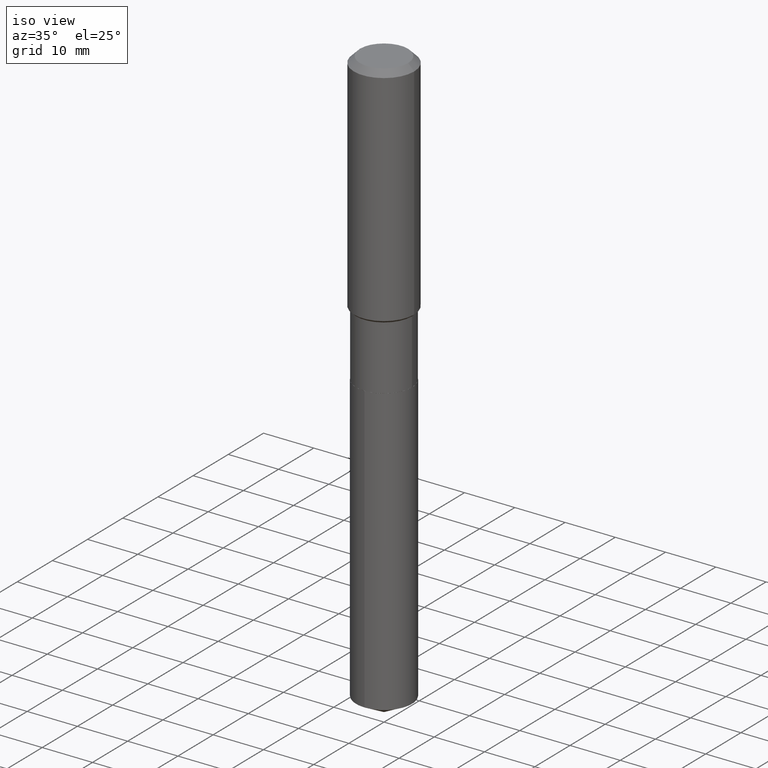
[diagram: clean part render]
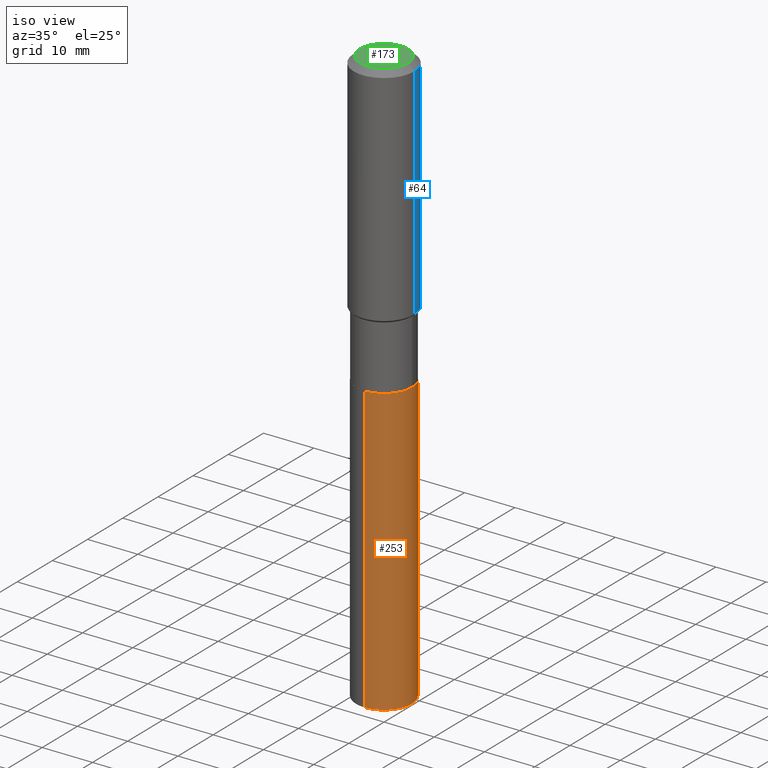
[diagram: same view with three faces highlighted in distinct colors, each labeled with its STEP entity id]
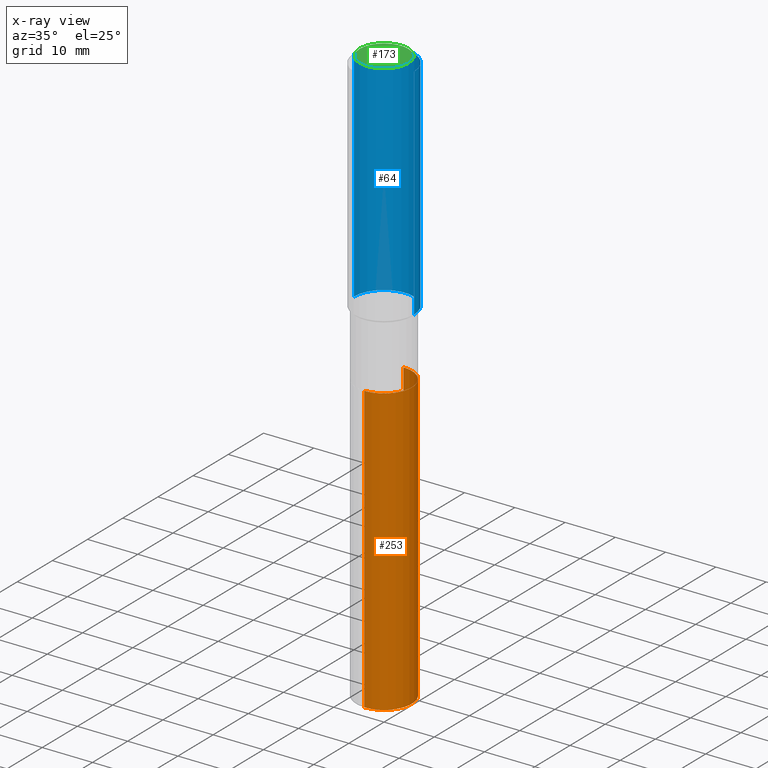
[diagram: x-ray of the same camera — body ghosted, the three highlighted faces saturated]
A machine part, iso view with three faces highlighted in distinct colors.
The next image is the same camera in x-ray (body ghosted, the three faces saturated) — at least one of them is partly hidden behind the body in this view.
Their STEP definitions:

[orange] entity #253 — the highlighted cylindrical surface (edge-blend (fillet) strip) has radius 5.5562 mm, axis along (-0, 0, 1).
#21 = EDGE_LOOP ( 'NONE', ( #48, #471, #53, #42 ) ) ;
#24 = CARTESIAN_POINT ( 'NONE',  ( 1.107731902311058001E-28, -1.581516993529237570E-14, -4.529688561824052329 ) ) ;
#26 = DIRECTION ( 'NONE',  ( -2.445516523471432488E-29, 3.491413004973270552E-15, 1.000000000000000000 ) ) ;
#42 = ORIENTED_EDGE ( 'NONE', *, *, #456, .F. ) ;
#48 = ORIENTED_EDGE ( 'NONE', *, *, #77, .T. ) ;
#53 = ORIENTED_EDGE ( 'NONE', *, *, #355, .F. ) ;
#59 = VERTEX_POINT ( 'NONE', #371 ) ;
#75 = AXIS2_PLACEMENT_3D ( 'NONE', #430, #360, #168 ) ;
#77 = EDGE_CURVE ( 'NONE', #362, #91, #472, .T. ) ;
#91 = VERTEX_POINT ( 'NONE', #440 ) ;
#116 = CARTESIAN_POINT ( 'NONE',  ( 5.596455362954686241E-29, -7.990255043942539745E-15, -2.288499999999999979 ) ) ;
#120 = DIRECTION ( 'NONE',  ( -2.445516523471432488E-29, 3.491413004973270552E-15, 1.000000000000000000 ) ) ;
#154 = CARTESIAN_POINT ( 'NONE',  ( -1.527523085743814439E-15, -0.2187500000000079659, -2.288499999999999535 ) ) ;
#168 = DIRECTION ( 'NONE',  ( -6.982962677686265133E-15, -1.000000000000000000, 3.746534391310989557E-15 ) ) ;
#179 = DIRECTION ( 'NONE',  ( -6.982962677686265133E-15, -1.000000000000000000, 2.497689594207326371E-15 ) ) ;
#186 = CIRCLE ( 'NONE', #75, 0.2187500000000000000 ) ;
#188 = DIRECTION ( 'NONE',  ( -2.445516523471432488E-29, 3.491413004973270552E-15, 1.000000000000000000 ) ) ;
#193 = LINE ( 'NONE', #341, #406 ) ;
#253 = ADVANCED_FACE ( 'NONE', ( #259 ), #446, .T. ) ;
#256 = DIRECTION ( 'NONE',  ( -2.445516523471432488E-29, 3.491413004973270552E-15, 1.000000000000000000 ) ) ;
#258 = EDGE_CURVE ( 'NONE', #91, #59, #193, .T. ) ;
#259 = FACE_OUTER_BOUND ( 'NONE', #21, .T. ) ;
#341 = CARTESIAN_POINT ( 'NONE',  ( 1.554312234475274969E-15, 0.2187499999999920064, -2.288500000000000867 ) ) ;
#347 = VECTOR ( 'NONE', #188, 39.37007874015748143 ) ;
#355 = EDGE_CURVE ( 'NONE', #389, #59, #186, .T. ) ;
#356 = CARTESIAN_POINT ( 'NONE',  ( -1.527523085743759811E-15, -0.2187500000000157929, -4.529688561824051440 ) ) ;
#360 = DIRECTION ( 'NONE',  ( -2.445516523471432488E-29, 3.491413004973270552E-15, 1.000000000000000000 ) ) ;
#362 = VERTEX_POINT ( 'NONE', #356 ) ;
#371 = CARTESIAN_POINT ( 'NONE',  ( 1.554312234475330189E-15, 0.2187499999999920064, -2.288500000000000867 ) ) ;
#389 = VERTEX_POINT ( 'NONE', #469 ) ;
#406 = VECTOR ( 'NONE', #120, 39.37007874015748143 ) ;
#409 = DIRECTION ( 'NONE',  ( -6.982962677686265133E-15, -1.000000000000000000, 3.746534391310989557E-15 ) ) ;
#430 = CARTESIAN_POINT ( 'NONE',  ( 5.596455362954686241E-29, -7.990255043942539745E-15, -2.288499999999999979 ) ) ;
#440 = CARTESIAN_POINT ( 'NONE',  ( 1.554312234475329992E-15, 0.2187499999999842071, -4.529688561824053217 ) ) ;
#446 = CYLINDRICAL_SURFACE ( 'NONE', #480, 0.2187500000000000000 ) ;
#447 = AXIS2_PLACEMENT_3D ( 'NONE', #24, #26, #179 ) ;
#456 = EDGE_CURVE ( 'NONE', #362, #389, #481, .T. ) ;
#469 = CARTESIAN_POINT ( 'NONE',  ( -1.527523085743814439E-15, -0.2187500000000079659, -2.288499999999999535 ) ) ;
#471 = ORIENTED_EDGE ( 'NONE', *, *, #258, .T. ) ;
#472 = CIRCLE ( 'NONE', #447, 0.2187500000000000000 ) ;
#480 = AXIS2_PLACEMENT_3D ( 'NONE', #116, #256, #409 ) ;
#481 = LINE ( 'NONE', #154, #347 ) ;

[blue] entity #64 — the highlighted cylindrical surface (partial cylindrical patch) has radius 5.9995 mm, axis along (-0, 0, 1).
#15 = VECTOR ( 'NONE', #461, 39.37007874015748143 ) ;
#23 = CIRCLE ( 'NONE', #282, 0.2362000000000002153 ) ;
#28 = EDGE_CURVE ( 'NONE', #239, #141, #420, .T. ) ;
#30 = DIRECTION ( 'NONE',  ( 1.000000000000000000, -6.982962677686266711E-15, 4.876176775795935793E-29 ) ) ;
#64 = ADVANCED_FACE ( 'NONE', ( #326 ), #286, .T. ) ;
#103 = VECTOR ( 'NONE', #380, 39.37007874015748143 ) ;
#107 = DIRECTION ( 'NONE',  ( -2.445468806185136597E-29, 3.491481338843145583E-15, 1.000000000000000000 ) ) ;
#126 = AXIS2_PLACEMENT_3D ( 'NONE', #394, #107, #30 ) ;
#133 = DIRECTION ( 'NONE',  ( -2.445468806185136597E-29, 3.491481338843145583E-15, 1.000000000000000000 ) ) ;
#141 = VERTEX_POINT ( 'NONE', #230 ) ;
#151 = DIRECTION ( 'NONE',  ( -2.445468806185136597E-29, 3.491481338843145583E-15, 1.000000000000000000 ) ) ;
#159 = EDGE_CURVE ( 'NONE', #224, #141, #373, .T. ) ;
#162 = CARTESIAN_POINT ( 'NONE',  ( -0.2362000000000001043, 1.678301941865357380E-15, -1.161852468318209317E-29 ) ) ;
#167 = ORIENTED_EDGE ( 'NONE', *, *, #28, .F. ) ;
#182 = DIRECTION ( 'NONE',  ( 1.000000000000000000, -6.982962677686266711E-15, 0.000000000000000000 ) ) ;
#187 = CARTESIAN_POINT ( 'NONE',  ( 1.155239464041865331E-30, -1.649375784469511612E-16, -0.04724000000000027483 ) ) ;
#200 = CARTESIAN_POINT ( 'NONE',  ( 0.2362000000000001043, -1.649375784469496920E-15, 1.151752954443000508E-29 ) ) ;
#224 = VERTEX_POINT ( 'NONE', #452 ) ;
#230 = CARTESIAN_POINT ( 'NONE',  ( -0.2361999999999999933, -1.490549063861987191E-15, -0.04724000000000027483 ) ) ;
#239 = VERTEX_POINT ( 'NONE', #484 ) ;
#271 = DIRECTION ( 'NONE',  ( 1.000000000000000000, -6.982962677686266711E-15, 0.000000000000000000 ) ) ;
#282 = AXIS2_PLACEMENT_3D ( 'NONE', #459, #133, #271 ) ;
#286 = CYLINDRICAL_SURFACE ( 'NONE', #126, 0.2362000000000001043 ) ;
#289 = EDGE_CURVE ( 'NONE', #387, #239, #453, .T. ) ;
#316 = CARTESIAN_POINT ( 'NONE',  ( 0.2362000000000002153, -7.822140217477236724E-15, -1.767949999999999910 ) ) ;
#318 = EDGE_CURVE ( 'NONE', #387, #224, #23, .T. ) ;
#326 = FACE_OUTER_BOUND ( 'NONE', #374, .T. ) ;
#328 = AXIS2_PLACEMENT_3D ( 'NONE', #187, #151, #182 ) ;
#363 = ORIENTED_EDGE ( 'NONE', *, *, #318, .T. ) ;
#373 = LINE ( 'NONE', #162, #103 ) ;
#374 = EDGE_LOOP ( 'NONE', ( #363, #466, #167, #462 ) ) ;
#380 = DIRECTION ( 'NONE',  ( -2.445468806185136877E-29, 3.491481338843145188E-15, 1.000000000000000000 ) ) ;
#387 = VERTEX_POINT ( 'NONE', #316 ) ;
#394 = CARTESIAN_POINT ( 'NONE',  ( 0.000000000000000000, 0.000000000000000000, 0.000000000000000000 ) ) ;
#420 = CIRCLE ( 'NONE', #328, 0.2361999999999999933 ) ;
#452 = CARTESIAN_POINT ( 'NONE',  ( -0.2362000000000002153, -4.494462491142380649E-15, -1.767949999999999910 ) ) ;
#453 = LINE ( 'NONE', #200, #15 ) ;
#459 = CARTESIAN_POINT ( 'NONE',  ( 4.323466575895011537E-29, -6.172764433007738621E-15, -1.767949999999999910 ) ) ;
#461 = DIRECTION ( 'NONE',  ( -2.445468806185136877E-29, 3.491481338843145188E-15, 1.000000000000000000 ) ) ;
#462 = ORIENTED_EDGE ( 'NONE', *, *, #289, .F. ) ;
#466 = ORIENTED_EDGE ( 'NONE', *, *, #159, .T. ) ;
#484 = CARTESIAN_POINT ( 'NONE',  ( 0.2361999999999999933, -1.814313362916447440E-15, -0.04724000000000027483 ) ) ;

[green] entity #173 — the highlighted planar face has unit normal (0, -0, -1).
#13 = EDGE_CURVE ( 'NONE', #204, #357, #67, .T. ) ;
#38 = ORIENTED_EDGE ( 'NONE', *, *, #13, .T. ) ;
#56 = DIRECTION ( 'NONE',  ( -2.445468806185136597E-29, 3.491481338843145583E-15, 1.000000000000000000 ) ) ;
#67 = CIRCLE ( 'NONE', #464, 0.1889600000000000168 ) ;
#81 = DIRECTION ( 'NONE',  ( 2.438088387897960049E-29, -3.491481338843145188E-15, -1.000000000000000000 ) ) ;
#89 = CARTESIAN_POINT ( 'NONE',  ( 0.1889600000000000168, -1.540873453589747738E-15, 3.855188123725863225E-18 ) ) ;
#137 = ORIENTED_EDGE ( 'NONE', *, *, #343, .T. ) ;
#173 = ADVANCED_FACE ( 'NONE', ( #378 ), #344, .F. ) ;
#204 = VERTEX_POINT ( 'NONE', #89 ) ;
#241 = DIRECTION ( 'NONE',  ( 1.000000000000000000, -6.982962677686266711E-15, 4.876185090822587894E-29 ) ) ;
#252 = EDGE_LOOP ( 'NONE', ( #137, #38 ) ) ;
#292 = DIRECTION ( 'NONE',  ( -2.445468806185136597E-29, 3.491481338843145583E-15, 1.000000000000000000 ) ) ;
#301 = CARTESIAN_POINT ( 'NONE',  ( -4.713871149261273121E-47, 6.730158695841826722E-33, 1.927594061857931128E-18 ) ) ;
#309 = DIRECTION ( 'NONE',  ( -1.000000000000000000, 6.982962677686265922E-15, -4.876176775795935793E-29 ) ) ;
#311 = CARTESIAN_POINT ( 'NONE',  ( -9.427742298522546243E-47, 1.346031739168365344E-32, 3.855188123715862256E-18 ) ) ;
#319 = AXIS2_PLACEMENT_3D ( 'NONE', #301, #81, #309 ) ;
#340 = AXIS2_PLACEMENT_3D ( 'NONE', #311, #56, #241 ) ;
#343 = EDGE_CURVE ( 'NONE', #357, #204, #383, .T. ) ;
#344 = PLANE ( 'NONE',  #319 ) ;
#357 = VERTEX_POINT ( 'NONE', #428 ) ;
#378 = FACE_OUTER_BOUND ( 'NONE', #252, .T. ) ;
#383 = CIRCLE ( 'NONE', #340, 0.1889600000000000168 ) ;
#400 = DIRECTION ( 'NONE',  ( 1.000000000000000000, -6.982962677686266711E-15, 4.876185090822587894E-29 ) ) ;
#428 = CARTESIAN_POINT ( 'NONE',  ( -0.1889600000000000168, 1.401969416799070942E-15, 3.855188123706346622E-18 ) ) ;
#464 = AXIS2_PLACEMENT_3D ( 'NONE', #482, #292, #400 ) ;
#482 = CARTESIAN_POINT ( 'NONE',  ( -9.427742298522546243E-47, 1.346031739168365344E-32, 3.855188123715862256E-18 ) ) ;